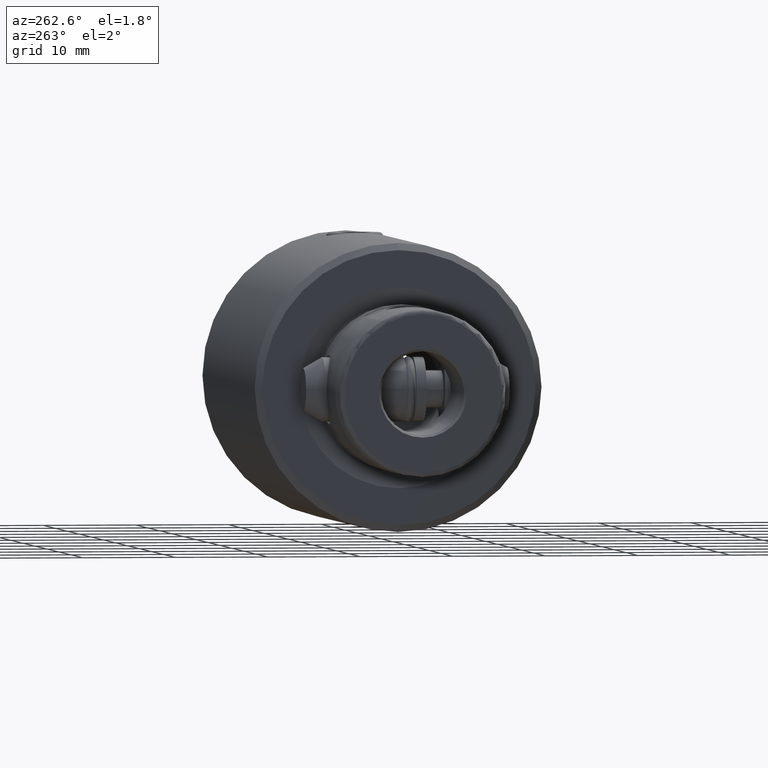
[diagram: clean part render]
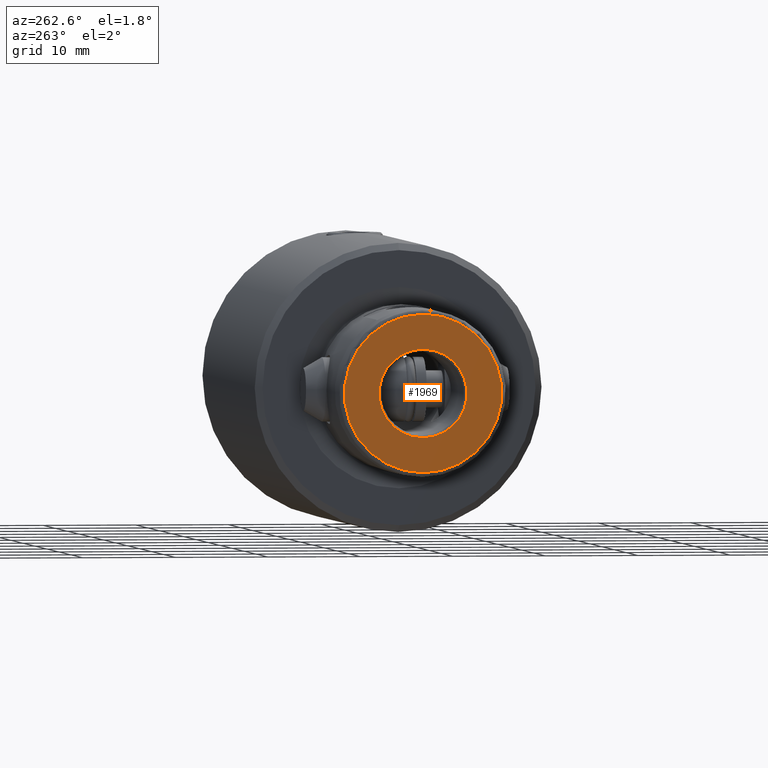
[diagram: same view with one face highlighted and labeled with its STEP entity id]
A machine part, auxiliary view. The second image highlights one B-rep face of the part: STEP entity #1969.
In plain terms, the highlighted planar face has unit normal (-1, -0, 0).
Its self-contained STEP definition (entity closure, byte-faithful):
#24 = CARTESIAN_POINT ( 'NONE',  ( -4.750000000000021316, -1.042576376711844113E-14, 65.00000000000000000 ) ) ;
#107 = VERTEX_POINT ( 'NONE', #24 ) ;
#130 = CARTESIAN_POINT ( 'NONE',  ( -8.499999999999998224, -9.726274574535265613E-15, 65.00000000000000000 ) ) ;
#298 = CARTESIAN_POINT ( 'NONE',  ( 1.227288162806122705E-18, -1.120522945263771041E-14, 65.00000000000000000 ) ) ;
#414 = ORIENTED_EDGE ( 'NONE', *, *, #2462, .T. ) ;
#509 = CARTESIAN_POINT ( 'NONE',  ( 8.500000000000044409, -1.155911300534431693E-14, 65.00000000000000000 ) ) ;
#696 = DIRECTION ( 'NONE',  ( -1.888135635087050939E-20, -1.723881454251955994E-16, 1.000000000000000000 ) ) ;
#712 = AXIS2_PLACEMENT_3D ( 'NONE', #298, #3531, #1760 ) ;
#718 = CIRCLE ( 'NONE', #883, 8.500000000000044409 ) ;
#883 = AXIS2_PLACEMENT_3D ( 'NONE', #1272, #2070, #4549 ) ;
#910 = DIRECTION ( 'NONE',  ( 1.000000000000000000, -4.163335914195345748E-17, 0.0000000000000000000 ) ) ;
#974 = AXIS2_PLACEMENT_3D ( 'NONE', #2193, #696, #4236 ) ;
#1060 = VERTEX_POINT ( 'NONE', #2051 ) ;
#1184 = ORIENTED_EDGE ( 'NONE', *, *, #3278, .T. ) ;
#1204 = EDGE_LOOP ( 'NONE', ( #414, #1184 ) ) ;
#1272 = CARTESIAN_POINT ( 'NONE',  ( 1.227288162806122705E-18, -1.120522945263771041E-14, 65.00000000000000000 ) ) ;
#1538 = FACE_OUTER_BOUND ( 'NONE', #1204, .T. ) ;
#1723 = EDGE_CURVE ( 'NONE', #107, #1060, #3369, .T. ) ;
#1760 = DIRECTION ( 'NONE',  ( 1.000000000000000000, -4.163335914195346364E-17, 0.0000000000000000000 ) ) ;
#1969 = ADVANCED_FACE ( 'NONE', ( #3846, #1538 ), #2912, .T. ) ;
#2051 = CARTESIAN_POINT ( 'NONE',  ( 4.750000000000021316, -1.140298790856199878E-14, 65.00000000000000000 ) ) ;
#2070 = DIRECTION ( 'NONE',  ( 1.888135635086342558E-20, -1.723881454251955994E-16, 1.000000000000000000 ) ) ;
#2193 = CARTESIAN_POINT ( 'NONE',  ( 1.227288162806122705E-18, -1.120522945263771041E-14, 65.00000000000000000 ) ) ;
#2194 = CARTESIAN_POINT ( 'NONE',  ( 1.227288162806122705E-18, -1.120522945263771041E-14, 65.00000000000000000 ) ) ;
#2233 = CIRCLE ( 'NONE', #2478, 4.750000000000020428 ) ;
#2242 = VERTEX_POINT ( 'NONE', #130 ) ;
#2459 = CIRCLE ( 'NONE', #712, 8.500000000000044409 ) ;
#2462 = EDGE_CURVE ( 'NONE', #3788, #2242, #718, .T. ) ;
#2478 = AXIS2_PLACEMENT_3D ( 'NONE', #3461, #2716, #910 ) ;
#2550 = DIRECTION ( 'NONE',  ( -1.888135635086342558E-20, 1.723881454251955994E-16, -1.000000000000000000 ) ) ;
#2716 = DIRECTION ( 'NONE',  ( -1.888135635086342558E-20, 1.723881454251955994E-16, -1.000000000000000000 ) ) ;
#2912 = PLANE ( 'NONE',  #974 ) ;
#3278 = EDGE_CURVE ( 'NONE', #2242, #3788, #2459, .T. ) ;
#3321 = ORIENTED_EDGE ( 'NONE', *, *, #1723, .T. ) ;
#3369 = CIRCLE ( 'NONE', #4398, 4.750000000000020428 ) ;
#3461 = CARTESIAN_POINT ( 'NONE',  ( 1.227288162806122705E-18, -1.120522945263771041E-14, 65.00000000000000000 ) ) ;
#3517 = EDGE_LOOP ( 'NONE', ( #4616, #3321 ) ) ;
#3531 = DIRECTION ( 'NONE',  ( 1.888135635086342558E-20, -1.723881454251955994E-16, 1.000000000000000000 ) ) ;
#3788 = VERTEX_POINT ( 'NONE', #509 ) ;
#3816 = EDGE_CURVE ( 'NONE', #1060, #107, #2233, .T. ) ;
#3846 = FACE_BOUND ( 'NONE', #3517, .T. ) ;
#4236 = DIRECTION ( 'NONE',  ( 1.000000000000000000, -4.163335914195348213E-17, 1.888135635086333229E-20 ) ) ;
#4398 = AXIS2_PLACEMENT_3D ( 'NONE', #2194, #2550, #4618 ) ;
#4549 = DIRECTION ( 'NONE',  ( 1.000000000000000000, -4.163335914195346364E-17, 0.0000000000000000000 ) ) ;
#4616 = ORIENTED_EDGE ( 'NONE', *, *, #3816, .T. ) ;
#4618 = DIRECTION ( 'NONE',  ( 1.000000000000000000, -4.163335914195345748E-17, 0.0000000000000000000 ) ) ;